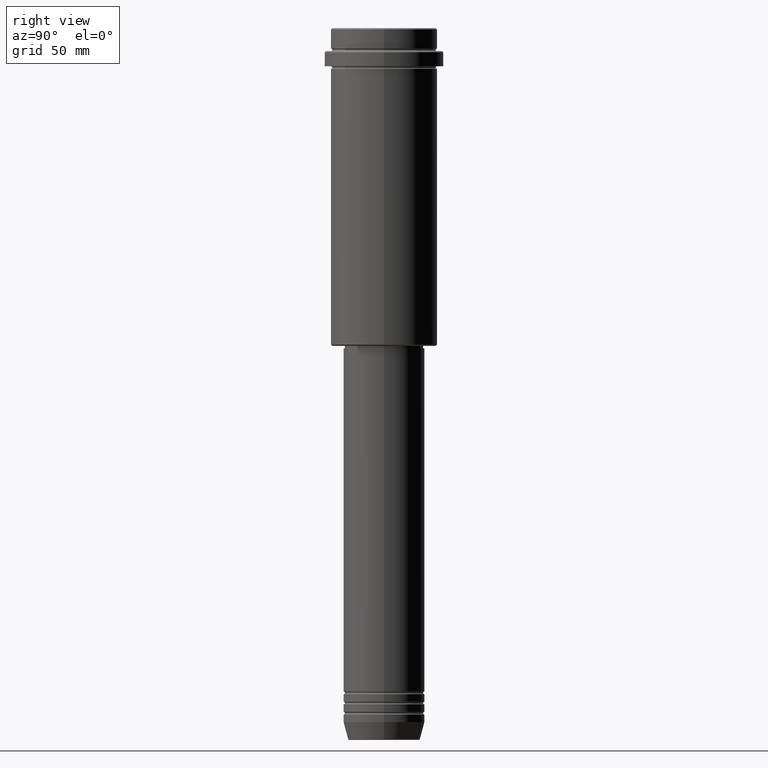
[diagram: clean part render]
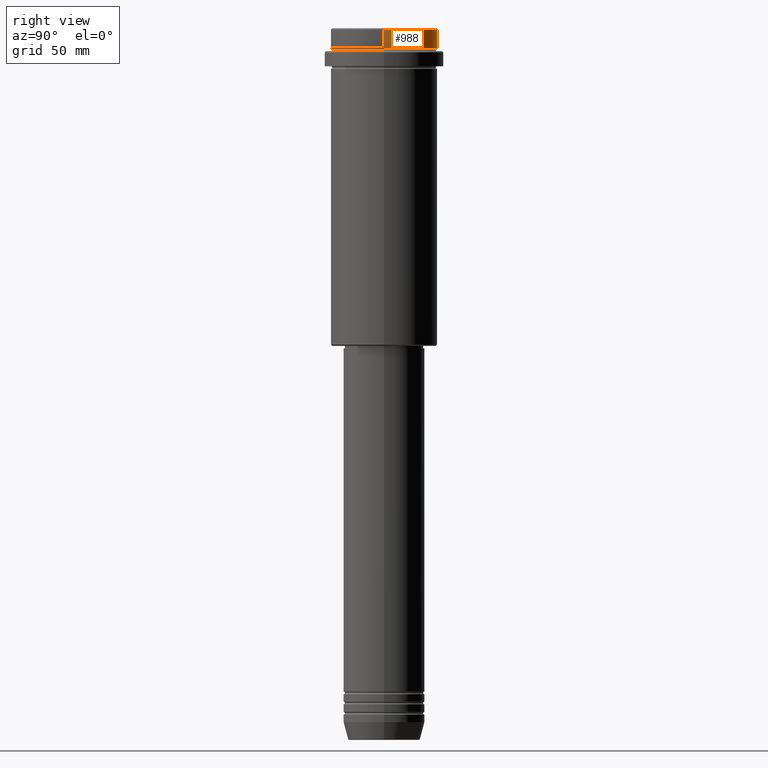
[diagram: same view with one face highlighted and labeled with its STEP entity id]
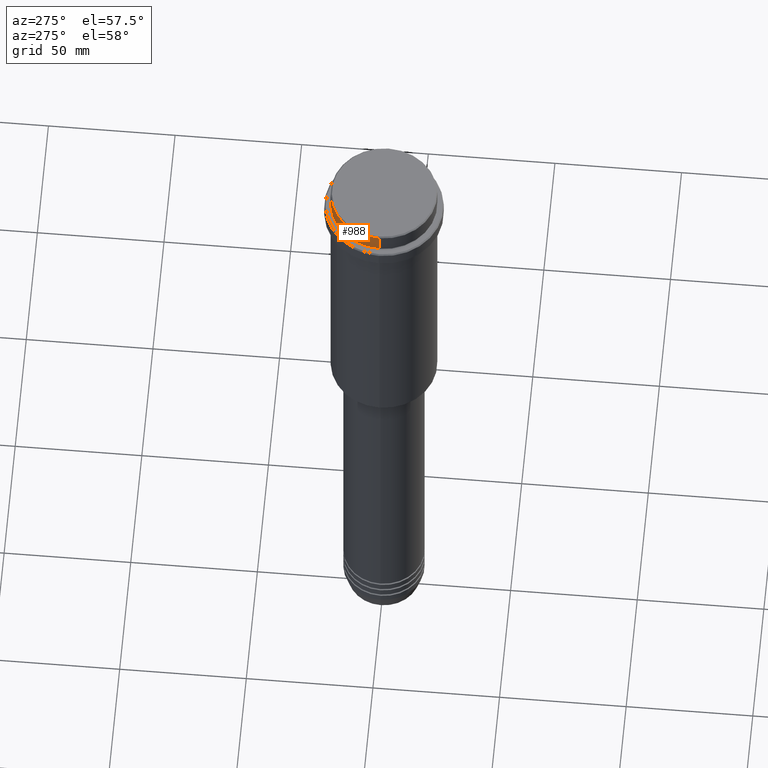
[diagram: same view with one face highlighted and labeled with its STEP entity id]
A machine part, right view. The second image highlights one B-rep face of the part: STEP entity #988.
A second angle (auxiliary view) of the same face is appended — the face is thin or edge-on in the first view.
In plain terms, the highlighted cylindrical surface (partial cylindrical patch) has radius 21 mm, axis along (-0, -0, 1).
Its self-contained STEP definition (entity closure, byte-faithful):
#26 = CARTESIAN_POINT ( 'NONE',  ( 21.00000000000000000, 0.000000000000000000, -0.4999999999999831246 ) ) ;
#40 = VECTOR ( 'NONE', #897, 1000.000000000000000 ) ;
#50 = CARTESIAN_POINT ( 'NONE',  ( 0.000000000000000000, 0.000000000000000000, -0.4999999999999831246 ) ) ;
#94 = DIRECTION ( 'NONE',  ( 1.000000000000000000, 0.000000000000000000, 0.000000000000000000 ) ) ;
#166 = EDGE_LOOP ( 'NONE', ( #1131, #956, #347, #803 ) ) ;
#181 = EDGE_CURVE ( 'NONE', #281, #1011, #741, .T. ) ;
#183 = AXIS2_PLACEMENT_3D ( 'NONE', #50, #497, #620 ) ;
#265 = VERTEX_POINT ( 'NONE', #335 ) ;
#281 = VERTEX_POINT ( 'NONE', #483 ) ;
#335 = CARTESIAN_POINT ( 'NONE',  ( 21.00000000000000000, 0.000000000000000000, -7.999999999999998224 ) ) ;
#344 = CARTESIAN_POINT ( 'NONE',  ( -21.00000000000000000, 2.571758278209441661E-15, 0.000000000000000000 ) ) ;
#347 = ORIENTED_EDGE ( 'NONE', *, *, #1274, .T. ) ;
#433 = CARTESIAN_POINT ( 'NONE',  ( 21.00000000000000000, 0.000000000000000000, 0.000000000000000000 ) ) ;
#483 = CARTESIAN_POINT ( 'NONE',  ( -21.00000000000000000, 2.571758278209441661E-15, -7.999999999999998224 ) ) ;
#490 = AXIS2_PLACEMENT_3D ( 'NONE', #1227, #1326, #94 ) ;
#497 = DIRECTION ( 'NONE',  ( 0.000000000000000000, 0.000000000000000000, -1.000000000000000000 ) ) ;
#620 = DIRECTION ( 'NONE',  ( 1.000000000000000000, 0.000000000000000000, 0.000000000000000000 ) ) ;
#626 = DIRECTION ( 'NONE',  ( -0.000000000000000000, -0.000000000000000000, 1.000000000000000000 ) ) ;
#643 = AXIS2_PLACEMENT_3D ( 'NONE', #972, #626, #1080 ) ;
#650 = FACE_OUTER_BOUND ( 'NONE', #166, .T. ) ;
#657 = CARTESIAN_POINT ( 'NONE',  ( -21.00000000000000000, 2.571758278209441661E-15, -0.4999999999999831246 ) ) ;
#741 = LINE ( 'NONE', #344, #40 ) ;
#781 = CYLINDRICAL_SURFACE ( 'NONE', #490, 21.00000000000000000 ) ;
#803 = ORIENTED_EDGE ( 'NONE', *, *, #811, .F. ) ;
#811 = EDGE_CURVE ( 'NONE', #265, #1139, #1327, .T. ) ;
#857 = CIRCLE ( 'NONE', #643, 21.00000000000000000 ) ;
#897 = DIRECTION ( 'NONE',  ( -0.000000000000000000, -0.000000000000000000, 1.000000000000000000 ) ) ;
#927 = VECTOR ( 'NONE', #1219, 1000.000000000000000 ) ;
#956 = ORIENTED_EDGE ( 'NONE', *, *, #181, .T. ) ;
#972 = CARTESIAN_POINT ( 'NONE',  ( 0.000000000000000000, 0.000000000000000000, -7.999999999999998224 ) ) ;
#988 = ADVANCED_FACE ( 'NONE', ( #650 ), #781, .T. ) ;
#1011 = VERTEX_POINT ( 'NONE', #657 ) ;
#1066 = CIRCLE ( 'NONE', #183, 21.00000000000000000 ) ;
#1080 = DIRECTION ( 'NONE',  ( 1.000000000000000000, 0.000000000000000000, 0.000000000000000000 ) ) ;
#1131 = ORIENTED_EDGE ( 'NONE', *, *, #1324, .T. ) ;
#1139 = VERTEX_POINT ( 'NONE', #26 ) ;
#1219 = DIRECTION ( 'NONE',  ( -0.000000000000000000, -0.000000000000000000, 1.000000000000000000 ) ) ;
#1227 = CARTESIAN_POINT ( 'NONE',  ( 0.000000000000000000, 0.000000000000000000, 0.000000000000000000 ) ) ;
#1274 = EDGE_CURVE ( 'NONE', #1011, #1139, #1066, .T. ) ;
#1324 = EDGE_CURVE ( 'NONE', #265, #281, #857, .T. ) ;
#1326 = DIRECTION ( 'NONE',  ( -0.000000000000000000, -0.000000000000000000, 1.000000000000000000 ) ) ;
#1327 = LINE ( 'NONE', #433, #927 ) ;